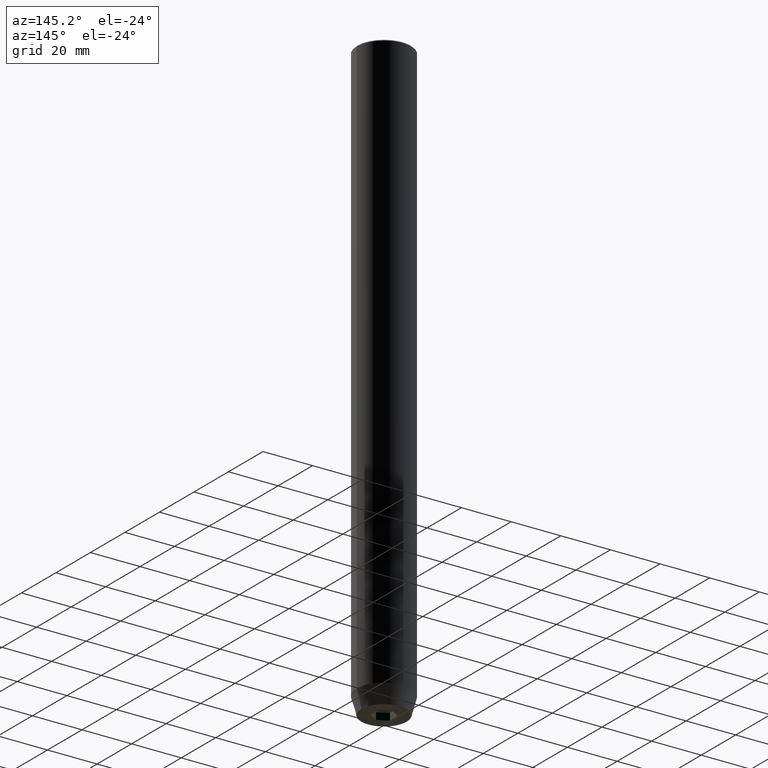
[diagram: clean part render]
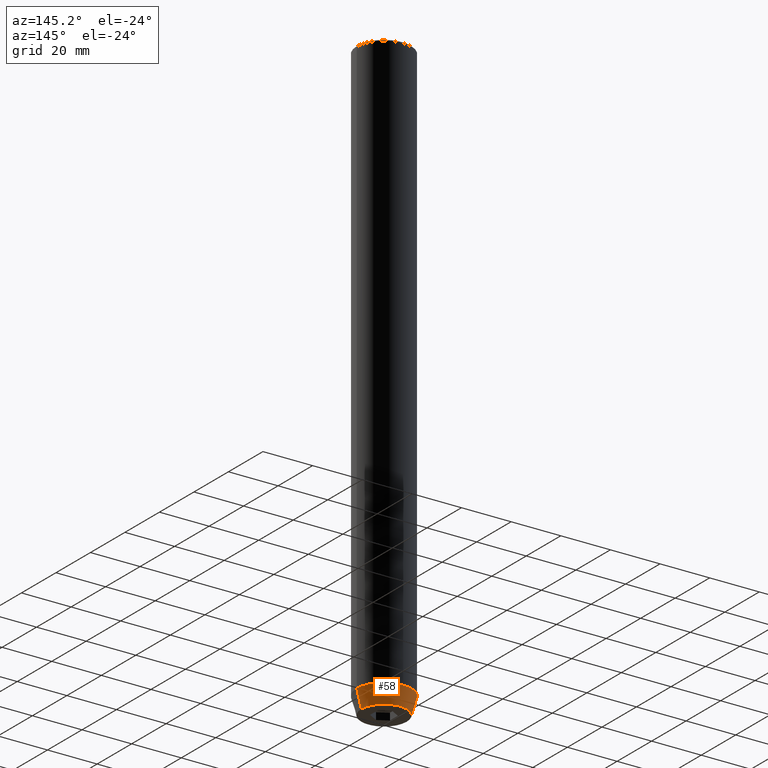
[diagram: same view with one face highlighted and labeled with its STEP entity id]
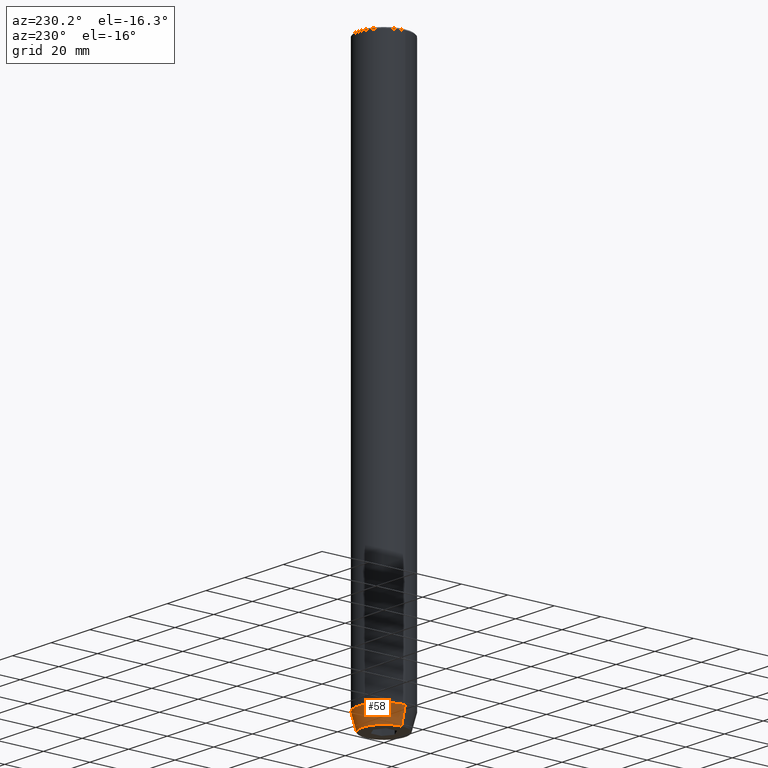
[diagram: same view with one face highlighted and labeled with its STEP entity id]
A machine part, auxiliary view. The second image highlights one B-rep face of the part: STEP entity #58.
A second angle (auxiliary view) of the same face is appended — the face is thin or edge-on in the first view.
In plain terms, the highlighted conical surface has half-angle 15 deg.
Its self-contained STEP definition (entity closure, byte-faithful):
#45 = LINE ( 'NONE', #460, #473 ) ;
#51 = AXIS2_PLACEMENT_3D ( 'NONE', #423, #141, #288 ) ;
#58 = ADVANCED_FACE ( 'NONE', ( #481 ), #172, .T. ) ;
#69 = ORIENTED_EDGE ( 'NONE', *, *, #318, .T. ) ;
#81 = EDGE_CURVE ( 'NONE', #571, #248, #522, .T. ) ;
#134 = DIRECTION ( 'NONE',  ( 0.2588190451025213501, 0.000000000000000000, 0.9659258262890680902 ) ) ;
#137 = CIRCLE ( 'NONE', #322, 9.124355652982133691 ) ;
#141 = DIRECTION ( 'NONE',  ( -0.000000000000000000, -0.000000000000000000, 1.000000000000000000 ) ) ;
#142 = LINE ( 'NONE', #147, #305 ) ;
#144 = AXIS2_PLACEMENT_3D ( 'NONE', #470, #194, #326 ) ;
#147 = CARTESIAN_POINT ( 'NONE',  ( -11.00000000000000000, 1.347111479062088405E-15, -232.9999999999999716 ) ) ;
#162 = EDGE_CURVE ( 'NONE', #197, #248, #142, .T. ) ;
#172 = CONICAL_SURFACE ( 'NONE', #51, 11.00000000000000000, 0.2617993877991500740 ) ;
#194 = DIRECTION ( 'NONE',  ( -0.000000000000000000, -0.000000000000000000, 1.000000000000000000 ) ) ;
#197 = VERTEX_POINT ( 'NONE', #561 ) ;
#207 = ORIENTED_EDGE ( 'NONE', *, *, #81, .F. ) ;
#211 = CARTESIAN_POINT ( 'NONE',  ( 0.000000000000000000, 0.000000000000000000, -240.0000000000000000 ) ) ;
#248 = VERTEX_POINT ( 'NONE', #401 ) ;
#276 = CARTESIAN_POINT ( 'NONE',  ( 9.124355652982133691, 0.000000000000000000, -240.0000000000000000 ) ) ;
#288 = DIRECTION ( 'NONE',  ( 1.000000000000000000, 0.000000000000000000, 0.000000000000000000 ) ) ;
#292 = ORIENTED_EDGE ( 'NONE', *, *, #162, .T. ) ;
#305 = VECTOR ( 'NONE', #378, 1000.000000000000000 ) ;
#318 = EDGE_CURVE ( 'NONE', #468, #197, #137, .T. ) ;
#322 = AXIS2_PLACEMENT_3D ( 'NONE', #211, #392, #534 ) ;
#326 = DIRECTION ( 'NONE',  ( 1.000000000000000000, 0.000000000000000000, 0.000000000000000000 ) ) ;
#355 = EDGE_LOOP ( 'NONE', ( #69, #292, #207, #490 ) ) ;
#378 = DIRECTION ( 'NONE',  ( -0.2588190451025213501, 3.169619151431772337E-17, 0.9659258262890680902 ) ) ;
#392 = DIRECTION ( 'NONE',  ( -0.000000000000000000, -0.000000000000000000, 1.000000000000000000 ) ) ;
#401 = CARTESIAN_POINT ( 'NONE',  ( -11.00000000000000000, 1.347111479062088405E-15, -232.9999999999999716 ) ) ;
#423 = CARTESIAN_POINT ( 'NONE',  ( 0.000000000000000000, 0.000000000000000000, -232.9999999999999716 ) ) ;
#451 = EDGE_CURVE ( 'NONE', #468, #571, #45, .T. ) ;
#460 = CARTESIAN_POINT ( 'NONE',  ( 11.00000000000000000, 0.000000000000000000, -232.9999999999999716 ) ) ;
#468 = VERTEX_POINT ( 'NONE', #276 ) ;
#470 = CARTESIAN_POINT ( 'NONE',  ( 0.000000000000000000, 0.000000000000000000, -232.9999999999999716 ) ) ;
#473 = VECTOR ( 'NONE', #134, 1000.000000000000000 ) ;
#481 = FACE_OUTER_BOUND ( 'NONE', #355, .T. ) ;
#490 = ORIENTED_EDGE ( 'NONE', *, *, #451, .F. ) ;
#522 = CIRCLE ( 'NONE', #144, 11.00000000000000000 ) ;
#534 = DIRECTION ( 'NONE',  ( 1.000000000000000000, 0.000000000000000000, 0.000000000000000000 ) ) ;
#542 = CARTESIAN_POINT ( 'NONE',  ( 11.00000000000000000, 0.000000000000000000, -232.9999999999999716 ) ) ;
#561 = CARTESIAN_POINT ( 'NONE',  ( -9.124355652982133691, 1.232261386766375507E-15, -240.0000000000000000 ) ) ;
#571 = VERTEX_POINT ( 'NONE', #542 ) ;